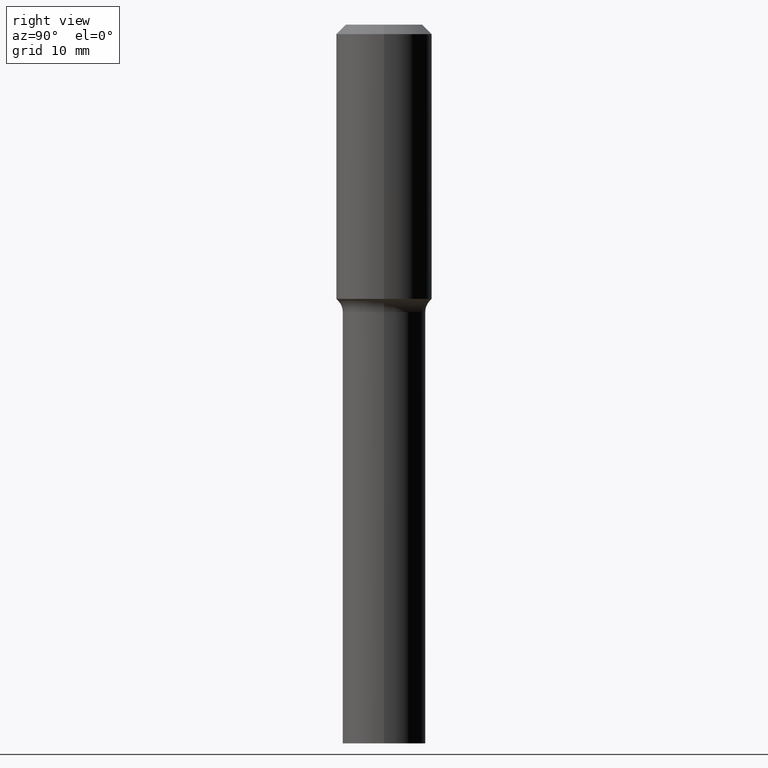
[diagram: clean part render]
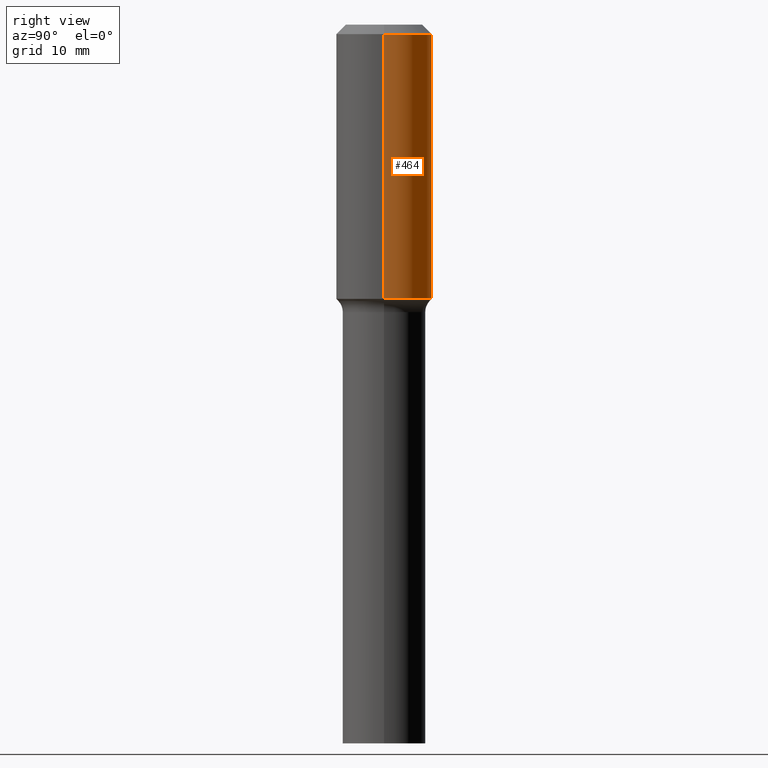
[diagram: same view with one face highlighted and labeled with its STEP entity id]
A machine part, right view. The second image highlights one B-rep face of the part: STEP entity #464.
In plain terms, the highlighted cylindrical surface (partial cylindrical patch) has radius 5.9995 mm, axis along (-0, 0, 1).
Its self-contained STEP definition (entity closure, byte-faithful):
#6 = DIRECTION ( 'NONE',  ( -2.445468806185136597E-29, 3.491481338843145583E-15, 1.000000000000000000 ) ) ;
#9 = CARTESIAN_POINT ( 'NONE',  ( 3.306292283346049435E-29, -4.720509122368206214E-15, -1.352007547585026614 ) ) ;
#10 = CIRCLE ( 'NONE', #416, 0.2362000000000001598 ) ;
#17 = CARTESIAN_POINT ( 'NONE',  ( 0.2362000000000000766, -1.649375784469496722E-15, 1.151752954443000368E-29 ) ) ;
#30 = CARTESIAN_POINT ( 'NONE',  ( 0.2362000000000001598, -6.369884906837703528E-15, -1.352007547585026614 ) ) ;
#44 = VECTOR ( 'NONE', #165, 39.37007874015748143 ) ;
#80 = CARTESIAN_POINT ( 'NONE',  ( 0.2361999999999999933, -1.814313362916447440E-15, -0.04724000000000028870 ) ) ;
#88 = CARTESIAN_POINT ( 'NONE',  ( -0.2362000000000001598, -3.042207180502848242E-15, -1.352007547585026614 ) ) ;
#119 = DIRECTION ( 'NONE',  ( 1.000000000000000000, -6.982962677686266711E-15, 4.876176775795935793E-29 ) ) ;
#139 = CARTESIAN_POINT ( 'NONE',  ( -0.2362000000000000766, 1.678301941865357183E-15, -1.161852468318209177E-29 ) ) ;
#143 = LINE ( 'NONE', #139, #145 ) ;
#145 = VECTOR ( 'NONE', #172, 39.37007874015748143 ) ;
#150 = CYLINDRICAL_SURFACE ( 'NONE', #368, 0.2362000000000000766 ) ;
#165 = DIRECTION ( 'NONE',  ( -2.445468806185136877E-29, 3.491481338843145188E-15, 1.000000000000000000 ) ) ;
#172 = DIRECTION ( 'NONE',  ( -2.445468806185136877E-29, 3.491481338843145188E-15, 1.000000000000000000 ) ) ;
#179 = VERTEX_POINT ( 'NONE', #30 ) ;
#181 = EDGE_CURVE ( 'NONE', #179, #467, #366, .T. ) ;
#187 = AXIS2_PLACEMENT_3D ( 'NONE', #431, #314, #275 ) ;
#210 = CIRCLE ( 'NONE', #187, 0.2361999999999999933 ) ;
#211 = EDGE_LOOP ( 'NONE', ( #378, #325, #329, #342 ) ) ;
#221 = EDGE_CURVE ( 'NONE', #467, #461, #210, .T. ) ;
#257 = EDGE_CURVE ( 'NONE', #179, #296, #10, .T. ) ;
#275 = DIRECTION ( 'NONE',  ( 1.000000000000000000, -6.982962677686266711E-15, 0.000000000000000000 ) ) ;
#296 = VERTEX_POINT ( 'NONE', #88 ) ;
#314 = DIRECTION ( 'NONE',  ( -2.445468806185136597E-29, 3.491481338843145583E-15, 1.000000000000000000 ) ) ;
#317 = DIRECTION ( 'NONE',  ( 1.000000000000000000, -6.982962677686268288E-15, 0.000000000000000000 ) ) ;
#325 = ORIENTED_EDGE ( 'NONE', *, *, #509, .T. ) ;
#329 = ORIENTED_EDGE ( 'NONE', *, *, #221, .F. ) ;
#342 = ORIENTED_EDGE ( 'NONE', *, *, #181, .F. ) ;
#346 = FACE_OUTER_BOUND ( 'NONE', #211, .T. ) ;
#348 = CARTESIAN_POINT ( 'NONE',  ( -0.2361999999999999933, -7.644214085422213814E-16, -0.04724000000000028870 ) ) ;
#366 = LINE ( 'NONE', #17, #44 ) ;
#368 = AXIS2_PLACEMENT_3D ( 'NONE', #515, #389, #119 ) ;
#378 = ORIENTED_EDGE ( 'NONE', *, *, #257, .T. ) ;
#389 = DIRECTION ( 'NONE',  ( -2.445468806185136597E-29, 3.491481338843145583E-15, 1.000000000000000000 ) ) ;
#416 = AXIS2_PLACEMENT_3D ( 'NONE', #9, #6, #317 ) ;
#431 = CARTESIAN_POINT ( 'NONE',  ( 1.155239464041865682E-30, -1.649375784469512105E-16, -0.04724000000000028870 ) ) ;
#461 = VERTEX_POINT ( 'NONE', #348 ) ;
#464 = ADVANCED_FACE ( 'NONE', ( #346 ), #150, .T. ) ;
#467 = VERTEX_POINT ( 'NONE', #80 ) ;
#509 = EDGE_CURVE ( 'NONE', #296, #461, #143, .T. ) ;
#515 = CARTESIAN_POINT ( 'NONE',  ( 0.000000000000000000, 0.000000000000000000, 0.000000000000000000 ) ) ;